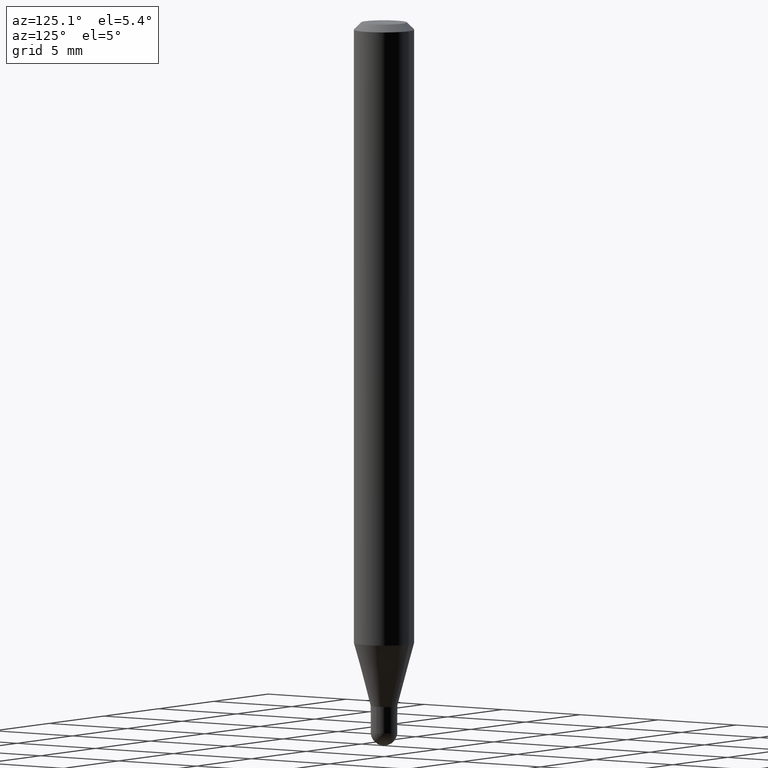
[diagram: clean part render]
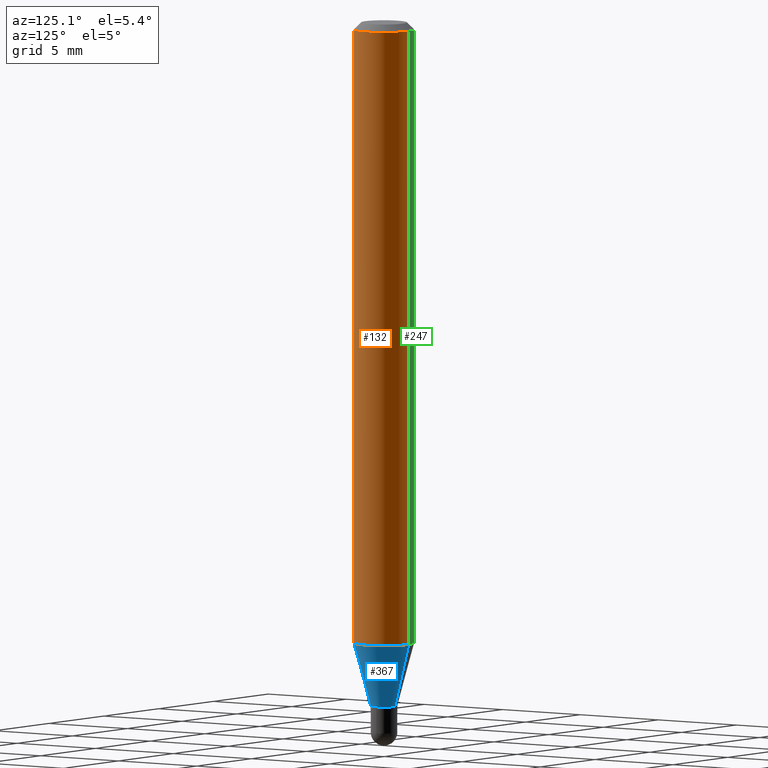
[diagram: same view with three faces highlighted in distinct colors, each labeled with its STEP entity id]
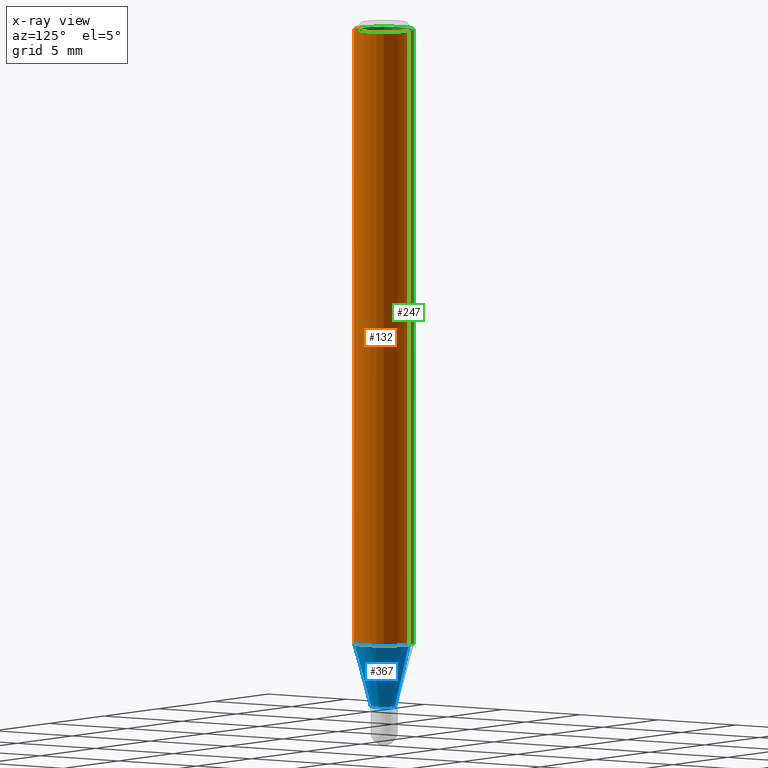
[diagram: x-ray of the same camera — body ghosted, the three highlighted faces saturated]
A machine part, auxiliary view with three faces highlighted in distinct colors.
The next image is the same camera in x-ray (body ghosted, the three faces saturated) — at least one of them is partly hidden behind the body in this view.
Their STEP definitions:

[orange] entity #132 — the highlighted cylindrical surface (edge-blend (fillet) strip) has radius 1.5875 mm, axis along (-0, 0, 1).
#28 = CARTESIAN_POINT ( 'NONE',  ( -4.364351673553916201E-16, -0.06250000000000000000, 2.182180139096782531E-16 ) ) ;
#44 = LINE ( 'NONE', #124, #490 ) ;
#48 = VECTOR ( 'NONE', #462, 39.37007874015748143 ) ;
#55 = ORIENTED_EDGE ( 'NONE', *, *, #111, .F. ) ;
#73 = CARTESIAN_POINT ( 'NONE',  ( 3.668195998972432242E-31, -5.237232333832300359E-17, -0.01500000000000006710 ) ) ;
#79 = CIRCLE ( 'NONE', #324, 0.06250000000000000000 ) ;
#84 = DIRECTION ( 'NONE',  ( -2.445463999314943945E-29, 3.491488222554851654E-15, 1.000000000000000000 ) ) ;
#110 = CYLINDRICAL_SURFACE ( 'NONE', #153, 0.06250000000000000000 ) ;
#111 = EDGE_CURVE ( 'NONE', #430, #486, #298, .T. ) ;
#124 = CARTESIAN_POINT ( 'NONE',  ( 4.440892098500625669E-16, 0.06250000000000000000, -2.182180139096782531E-16 ) ) ;
#128 = CIRCLE ( 'NONE', #343, 0.06250000000000000000 ) ;
#131 = CARTESIAN_POINT ( 'NONE',  ( -4.364351673553603122E-16, -0.06250000000000451028, -1.286878221735094252 ) ) ;
#132 = ADVANCED_FACE ( 'NONE', ( #463 ), #110, .T. ) ;
#138 = VERTEX_POINT ( 'NONE', #238 ) ;
#153 = AXIS2_PLACEMENT_3D ( 'NONE', #254, #227, #422 ) ;
#160 = CARTESIAN_POINT ( 'NONE',  ( 3.147014362755607605E-29, -4.493120155050413636E-15, -1.286878221735094474 ) ) ;
#166 = DIRECTION ( 'NONE',  ( -2.445463999314943664E-29, 3.491488222554852049E-15, 1.000000000000000000 ) ) ;
#175 = EDGE_CURVE ( 'NONE', #486, #285, #79, .T. ) ;
#201 = DIRECTION ( 'NONE',  ( -6.982962677686265922E-15, -1.000000000000000000, 4.370956789862821150E-15 ) ) ;
#227 = DIRECTION ( 'NONE',  ( -2.445463999314943664E-29, 3.491488222554852049E-15, 1.000000000000000000 ) ) ;
#238 = CARTESIAN_POINT ( 'NONE',  ( 4.440892098500938748E-16, 0.06249999999999548972, -1.286878221735094918 ) ) ;
#254 = CARTESIAN_POINT ( 'NONE',  ( 0.000000000000000000, 0.000000000000000000, 0.000000000000000000 ) ) ;
#263 = DIRECTION ( 'NONE',  ( -6.982962677686265922E-15, -1.000000000000000000, 3.483106191921935554E-15 ) ) ;
#285 = VERTEX_POINT ( 'NONE', #437 ) ;
#286 = EDGE_CURVE ( 'NONE', #138, #285, #44, .T. ) ;
#292 = EDGE_LOOP ( 'NONE', ( #384, #420, #340, #55 ) ) ;
#298 = LINE ( 'NONE', #28, #48 ) ;
#324 = AXIS2_PLACEMENT_3D ( 'NONE', #73, #387, #263 ) ;
#340 = ORIENTED_EDGE ( 'NONE', *, *, #175, .F. ) ;
#343 = AXIS2_PLACEMENT_3D ( 'NONE', #160, #166, #201 ) ;
#384 = ORIENTED_EDGE ( 'NONE', *, *, #404, .T. ) ;
#387 = DIRECTION ( 'NONE',  ( -2.445463999314943664E-29, 3.491488222554852049E-15, 1.000000000000000000 ) ) ;
#404 = EDGE_CURVE ( 'NONE', #430, #138, #128, .T. ) ;
#420 = ORIENTED_EDGE ( 'NONE', *, *, #286, .T. ) ;
#422 = DIRECTION ( 'NONE',  ( -6.982962677686265922E-15, -1.000000000000000000, 3.491488222554852049E-15 ) ) ;
#430 = VERTEX_POINT ( 'NONE', #131 ) ;
#436 = CARTESIAN_POINT ( 'NONE',  ( -4.364351673553912750E-16, -0.06250000000000005551, -0.01499999999999984852 ) ) ;
#437 = CARTESIAN_POINT ( 'NONE',  ( 4.440892098500942692E-16, 0.06249999999999995143, -0.01500000000000028394 ) ) ;
#462 = DIRECTION ( 'NONE',  ( -2.445463999314943945E-29, 3.491488222554851654E-15, 1.000000000000000000 ) ) ;
#463 = FACE_OUTER_BOUND ( 'NONE', #292, .T. ) ;
#486 = VERTEX_POINT ( 'NONE', #436 ) ;
#490 = VECTOR ( 'NONE', #84, 39.37007874015748143 ) ;

[blue] entity #367 — the highlighted conical surface has half-angle 15 deg.
#4 = DIRECTION ( 'NONE',  ( -1.807323732225381810E-15, -0.2588190451025255689, 0.9659258262890669799 ) ) ;
#8 = VECTOR ( 'NONE', #4, 39.37007874015748854 ) ;
#22 = VERTEX_POINT ( 'NONE', #148 ) ;
#29 = DIRECTION ( 'NONE',  ( 1.839019923739652775E-15, 0.2588190451025323413, 0.9659258262890650926 ) ) ;
#30 = ORIENTED_EDGE ( 'NONE', *, *, #473, .T. ) ;
#32 = FACE_OUTER_BOUND ( 'NONE', #432, .T. ) ;
#40 = DIRECTION ( 'NONE',  ( -2.445463999314943664E-29, 3.491488222554852049E-15, 1.000000000000000000 ) ) ;
#52 = AXIS2_PLACEMENT_3D ( 'NONE', #113, #116, #78 ) ;
#78 = DIRECTION ( 'NONE',  ( -6.982962677686265922E-15, -1.000000000000000000, 0.000000000000000000 ) ) ;
#100 = VERTEX_POINT ( 'NONE', #380 ) ;
#113 = CARTESIAN_POINT ( 'NONE',  ( 3.466445219028933028E-29, -4.949184555471503402E-15, -1.417500000000000204 ) ) ;
#114 = ORIENTED_EDGE ( 'NONE', *, *, #319, .T. ) ;
#116 = DIRECTION ( 'NONE',  ( -2.445463999314943664E-29, 3.491488222554852049E-15, 1.000000000000000000 ) ) ;
#128 = CIRCLE ( 'NONE', #343, 0.06250000000000000000 ) ;
#131 = CARTESIAN_POINT ( 'NONE',  ( -4.364351673553603122E-16, -0.06250000000000451028, -1.286878221735094252 ) ) ;
#136 = ORIENTED_EDGE ( 'NONE', *, *, #404, .F. ) ;
#138 = VERTEX_POINT ( 'NONE', #238 ) ;
#148 = CARTESIAN_POINT ( 'NONE',  ( 3.197442310920788942E-16, 0.02749999999999524700, -1.417500000000000204 ) ) ;
#160 = CARTESIAN_POINT ( 'NONE',  ( 3.147014362755607605E-29, -4.493120155050413636E-15, -1.286878221735094474 ) ) ;
#166 = DIRECTION ( 'NONE',  ( -2.445463999314943664E-29, 3.491488222554852049E-15, 1.000000000000000000 ) ) ;
#170 = CIRCLE ( 'NONE', #52, 0.02750000000000019443 ) ;
#190 = CARTESIAN_POINT ( 'NONE',  ( 3.466445219028933028E-29, -4.949184555471503402E-15, -1.417500000000000204 ) ) ;
#192 = CONICAL_SURFACE ( 'NONE', #483, 0.02750000000000019443, 0.2617993877991579010 ) ;
#197 = CARTESIAN_POINT ( 'NONE',  ( 1.953992523340635685E-16, 0.02749999999999524700, -1.417500000000000204 ) ) ;
#201 = DIRECTION ( 'NONE',  ( -6.982962677686265922E-15, -1.000000000000000000, 4.370956789862821150E-15 ) ) ;
#236 = CARTESIAN_POINT ( 'NONE',  ( -1.920314736363389904E-16, -0.02750000000000514186, -1.417500000000000204 ) ) ;
#238 = CARTESIAN_POINT ( 'NONE',  ( 4.440892098500938748E-16, 0.06249999999999548972, -1.286878221735094918 ) ) ;
#283 = EDGE_CURVE ( 'NONE', #100, #430, #475, .T. ) ;
#319 = EDGE_CURVE ( 'NONE', #100, #22, #170, .T. ) ;
#341 = LINE ( 'NONE', #197, #357 ) ;
#343 = AXIS2_PLACEMENT_3D ( 'NONE', #160, #166, #201 ) ;
#357 = VECTOR ( 'NONE', #29, 39.37007874015748143 ) ;
#367 = ADVANCED_FACE ( 'NONE', ( #32 ), #192, .T. ) ;
#380 = CARTESIAN_POINT ( 'NONE',  ( -1.920314736363389904E-16, -0.02750000000000514186, -1.417500000000000204 ) ) ;
#404 = EDGE_CURVE ( 'NONE', #430, #138, #128, .T. ) ;
#430 = VERTEX_POINT ( 'NONE', #131 ) ;
#432 = EDGE_LOOP ( 'NONE', ( #114, #30, #136, #497 ) ) ;
#473 = EDGE_CURVE ( 'NONE', #22, #138, #341, .T. ) ;
#475 = LINE ( 'NONE', #236, #8 ) ;
#483 = AXIS2_PLACEMENT_3D ( 'NONE', #190, #40, #504 ) ;
#497 = ORIENTED_EDGE ( 'NONE', *, *, #283, .F. ) ;
#504 = DIRECTION ( 'NONE',  ( -6.982962677686265922E-15, -1.000000000000000000, 0.000000000000000000 ) ) ;

[green] entity #247 — the highlighted cylindrical surface (edge-blend (fillet) strip) has radius 1.5875 mm, axis along (-0, 0, 1).
#28 = CARTESIAN_POINT ( 'NONE',  ( -4.364351673553916201E-16, -0.06250000000000000000, 2.182180139096782531E-16 ) ) ;
#44 = LINE ( 'NONE', #124, #490 ) ;
#48 = VECTOR ( 'NONE', #462, 39.37007874015748143 ) ;
#70 = DIRECTION ( 'NONE',  ( -2.445463999314943664E-29, 3.491488222554852049E-15, 1.000000000000000000 ) ) ;
#84 = DIRECTION ( 'NONE',  ( -2.445463999314943945E-29, 3.491488222554851654E-15, 1.000000000000000000 ) ) ;
#97 = DIRECTION ( 'NONE',  ( -6.982962677686265922E-15, -1.000000000000000000, 3.491488222554852049E-15 ) ) ;
#102 = CIRCLE ( 'NONE', #333, 0.06250000000000000000 ) ;
#111 = EDGE_CURVE ( 'NONE', #430, #486, #298, .T. ) ;
#124 = CARTESIAN_POINT ( 'NONE',  ( 4.440892098500625669E-16, 0.06250000000000000000, -2.182180139096782531E-16 ) ) ;
#131 = CARTESIAN_POINT ( 'NONE',  ( -4.364351673553603122E-16, -0.06250000000000451028, -1.286878221735094252 ) ) ;
#138 = VERTEX_POINT ( 'NONE', #238 ) ;
#147 = DIRECTION ( 'NONE',  ( -2.445463999314943664E-29, 3.491488222554852049E-15, 1.000000000000000000 ) ) ;
#154 = CARTESIAN_POINT ( 'NONE',  ( 3.668195998972432242E-31, -5.237232333832300359E-17, -0.01500000000000006710 ) ) ;
#167 = ORIENTED_EDGE ( 'NONE', *, *, #345, .T. ) ;
#235 = DIRECTION ( 'NONE',  ( -6.982962677686265922E-15, -1.000000000000000000, 4.370956789862821150E-15 ) ) ;
#238 = CARTESIAN_POINT ( 'NONE',  ( 4.440892098500938748E-16, 0.06249999999999548972, -1.286878221735094918 ) ) ;
#247 = ADVANCED_FACE ( 'NONE', ( #459 ), #383, .T. ) ;
#285 = VERTEX_POINT ( 'NONE', #437 ) ;
#286 = EDGE_CURVE ( 'NONE', #138, #285, #44, .T. ) ;
#297 = ORIENTED_EDGE ( 'NONE', *, *, #286, .F. ) ;
#298 = LINE ( 'NONE', #28, #48 ) ;
#316 = EDGE_CURVE ( 'NONE', #285, #486, #407, .T. ) ;
#331 = ORIENTED_EDGE ( 'NONE', *, *, #111, .T. ) ;
#333 = AXIS2_PLACEMENT_3D ( 'NONE', #427, #70, #235 ) ;
#345 = EDGE_CURVE ( 'NONE', #138, #430, #102, .T. ) ;
#383 = CYLINDRICAL_SURFACE ( 'NONE', #503, 0.06250000000000000000 ) ;
#407 = CIRCLE ( 'NONE', #476, 0.06250000000000000000 ) ;
#427 = CARTESIAN_POINT ( 'NONE',  ( 3.147014362755607605E-29, -4.493120155050413636E-15, -1.286878221735094474 ) ) ;
#430 = VERTEX_POINT ( 'NONE', #131 ) ;
#434 = DIRECTION ( 'NONE',  ( -6.982962677686265922E-15, -1.000000000000000000, 3.483106191921935554E-15 ) ) ;
#436 = CARTESIAN_POINT ( 'NONE',  ( -4.364351673553912750E-16, -0.06250000000000005551, -0.01499999999999984852 ) ) ;
#437 = CARTESIAN_POINT ( 'NONE',  ( 4.440892098500942692E-16, 0.06249999999999995143, -0.01500000000000028394 ) ) ;
#450 = ORIENTED_EDGE ( 'NONE', *, *, #316, .F. ) ;
#459 = FACE_OUTER_BOUND ( 'NONE', #461, .T. ) ;
#461 = EDGE_LOOP ( 'NONE', ( #297, #167, #331, #450 ) ) ;
#462 = DIRECTION ( 'NONE',  ( -2.445463999314943945E-29, 3.491488222554851654E-15, 1.000000000000000000 ) ) ;
#465 = DIRECTION ( 'NONE',  ( -2.445463999314943664E-29, 3.491488222554852049E-15, 1.000000000000000000 ) ) ;
#476 = AXIS2_PLACEMENT_3D ( 'NONE', #154, #465, #434 ) ;
#486 = VERTEX_POINT ( 'NONE', #436 ) ;
#490 = VECTOR ( 'NONE', #84, 39.37007874015748143 ) ;
#496 = CARTESIAN_POINT ( 'NONE',  ( 0.000000000000000000, 0.000000000000000000, 0.000000000000000000 ) ) ;
#503 = AXIS2_PLACEMENT_3D ( 'NONE', #496, #147, #97 ) ;